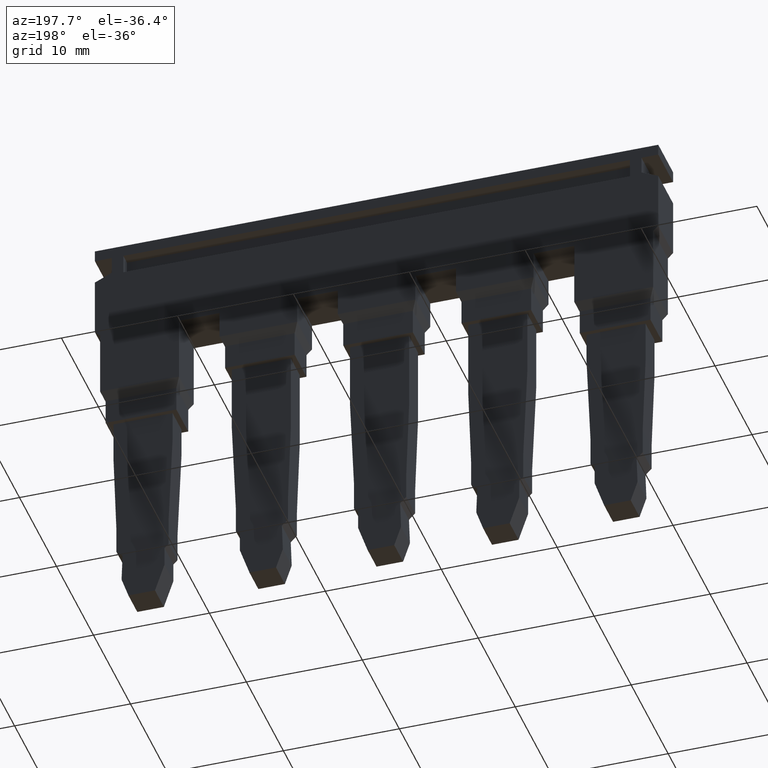
[diagram: clean part render]
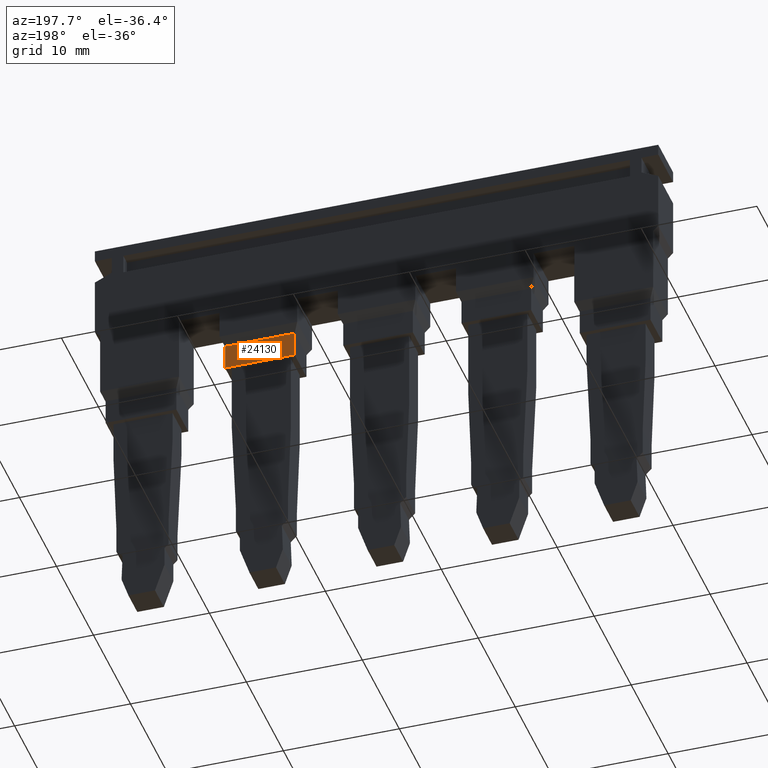
[diagram: same view with one face highlighted and labeled with its STEP entity id]
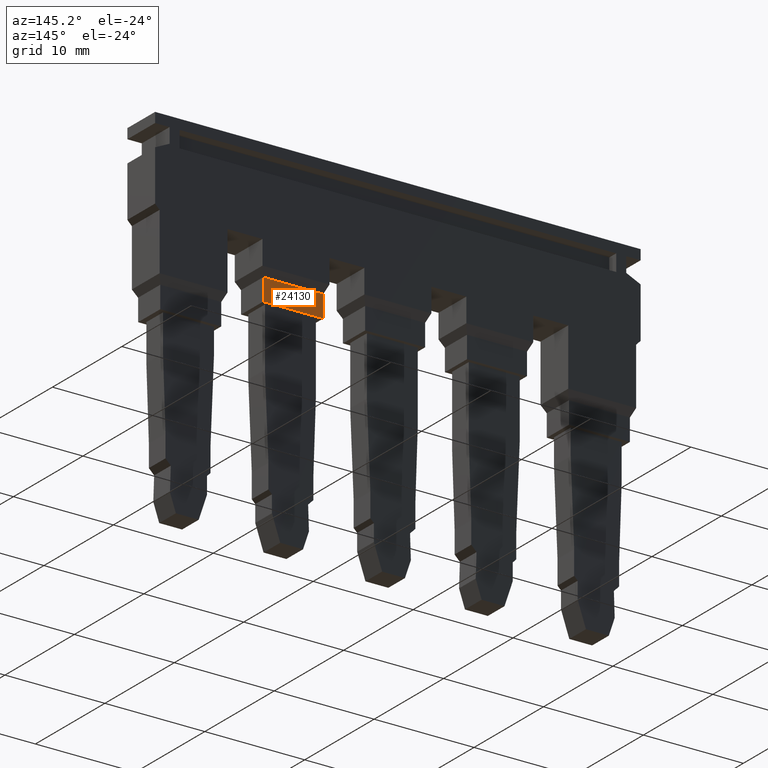
[diagram: same view with one face highlighted and labeled with its STEP entity id]
A machine part, auxiliary view. The second image highlights one B-rep face of the part: STEP entity #24130.
A second angle (auxiliary view) of the same face is appended — the face is thin or edge-on in the first view.
In plain terms, the highlighted planar face has unit normal (0, 1, 0).
Its self-contained STEP definition (entity closure, byte-faithful):
#12980=CARTESIAN_POINT('',(-2.80000000012511,28.0999997693687,
-2.02499999999995));
#12990=VERTEX_POINT('',#12980);
#13040=CARTESIAN_POINT('',(-2.80000000017496,39.4999997693668,
-2.02499999999995));
#13050=DIRECTION('',(4.37360856649983E-12,-1.,-1.8369701987204E-16));
#13060=VECTOR('',#13050,1.);
#13070=LINE('',#13040,#13060);
#13080=CARTESIAN_POINT('',(-2.80000000011548,25.8999997693718,
-2.02499999999995));
#13090=VERTEX_POINT('',#13080);
#13100=EDGE_CURVE('',#12990,#13090,#13070,.T.);
#16380=CARTESIAN_POINT('',(-2.8000000001251,28.0999997693597,
-8.02499999999597));
#16390=VERTEX_POINT('',#16380);
#20510=CARTESIAN_POINT('',(-2.80000000011548,25.8999997693718,
-8.02499999999988));
#20520=VERTEX_POINT('',#20510);
#20570=CARTESIAN_POINT('',(-2.80000000017496,39.4999997693668,
-8.02499999999988));
#20580=DIRECTION('',(-4.37360856649983E-12,1.,-6.12323399595007E-17));
#20590=VECTOR('',#20580,1.);
#20600=LINE('',#20570,#20590);
#20610=EDGE_CURVE('',#20520,#16390,#20600,.T.);
#20860=CARTESIAN_POINT('',(-2.80000000011548,25.8999997693718,-15.225));
#20870=DIRECTION('',(1.11022302461787E-16,1.16743491185646E-16,-1.));
#20880=VECTOR('',#20870,1.);
#20890=LINE('',#20860,#20880);
#20900=EDGE_CURVE('',#13090,#20520,#20890,.T.);
#23840=CARTESIAN_POINT('',(-2.8000000001251,28.0999997693597,-31.425));
#23850=DIRECTION('',(-1.11022302461495E-16,-1.83697019872103E-16,1.));
#23860=VECTOR('',#23850,1.);
#23870=LINE('',#23840,#23860);
#23880=EDGE_CURVE('',#16390,#12990,#23870,.T.);
#24020=CARTESIAN_POINT('',(-2.8000000001251,28.0999997693597,-31.425));
#24030=DIRECTION('',(1.,4.37360856649983E-12,1.11022302462298E-16));
#24040=DIRECTION('',(-4.37360856649983E-12,1.,1.83697019871617E-16));
#24050=AXIS2_PLACEMENT_3D('',#24020,#24030,#24040);
#24060=PLANE('',#24050);
#24070=ORIENTED_EDGE('',*,*,#23880,.T.);
#24080=ORIENTED_EDGE('',*,*,#20610,.T.);
#24090=ORIENTED_EDGE('',*,*,#20900,.T.);
#24100=ORIENTED_EDGE('',*,*,#13100,.T.);
#24110=EDGE_LOOP('',(#24100,#24090,#24080,#24070));
#24120=FACE_OUTER_BOUND('',#24110,.T.);
#24130=ADVANCED_FACE('',(#24120),#24060,.T.);